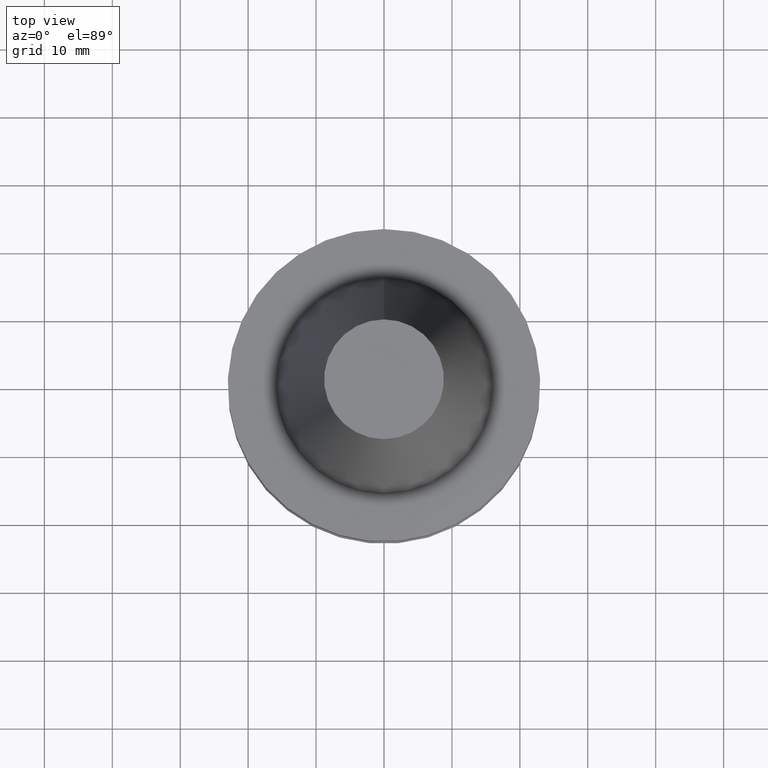
[diagram: clean part render]
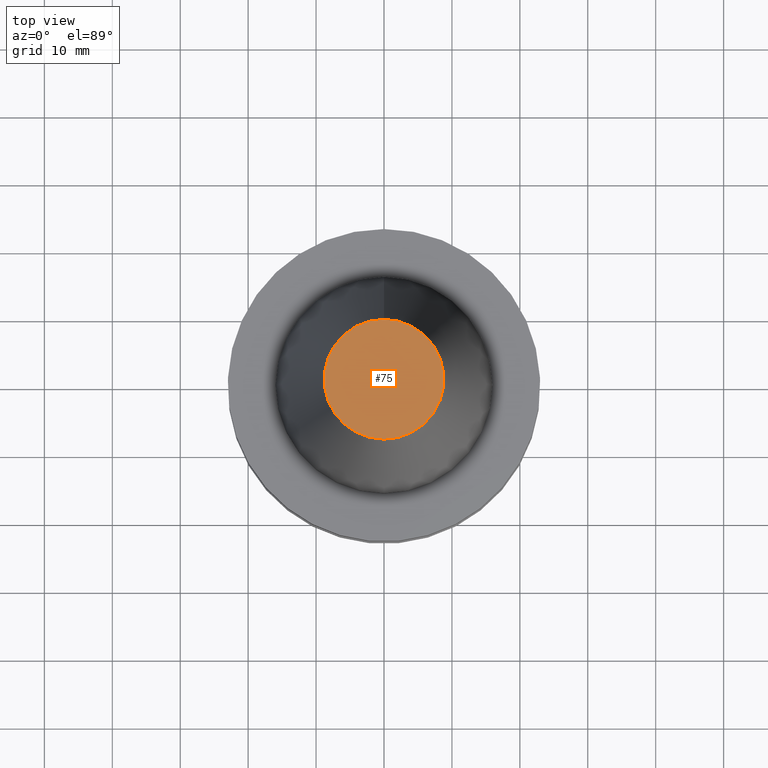
[diagram: same view with one face highlighted and labeled with its STEP entity id]
A machine part, top view. The second image highlights one B-rep face of the part: STEP entity #75.
In plain terms, the highlighted planar face has unit normal (-0, -0, 1).
Its self-contained STEP definition (entity closure, byte-faithful):
#75=ADVANCED_FACE('',(#89),#90,.T.);
#89=FACE_OUTER_BOUND('',#126,.T.);
#90=PLANE('',#127);
#126=EDGE_LOOP('',(#163));
#127=AXIS2_PLACEMENT_3D('',#164,#165,#166);
#163=ORIENTED_EDGE('',*,*,#226,.T.);
#164=CARTESIAN_POINT('',(-2.9636452539366E-015,4.40825023145189,48.4));
#165=DIRECTION('',(-6.12323399573677E-017,-1.22464679914735E-016,1.0));
#166=DIRECTION('',(-1.23259516440783E-032,1.0,1.22464679914735E-016));
#226=EDGE_CURVE('',#238,#238,#239,.T.);
#238=VERTEX_POINT('',#262);
#239=CIRCLE('',#263,8.81650046290378);
#262=CARTESIAN_POINT('',(-2.9636452539366E-015,8.81650046290378,48.4));
#263=AXIS2_PLACEMENT_3D('',#286,#287,#288);
#286=CARTESIAN_POINT('',(-2.9636452539366E-015,-5.92729050787319E-015,48.4));
#287=DIRECTION('',(-6.12323399573677E-017,-1.22464679914735E-016,1.0));
#288=DIRECTION('',(-1.23259516440783E-032,1.0,1.22464679914735E-016));